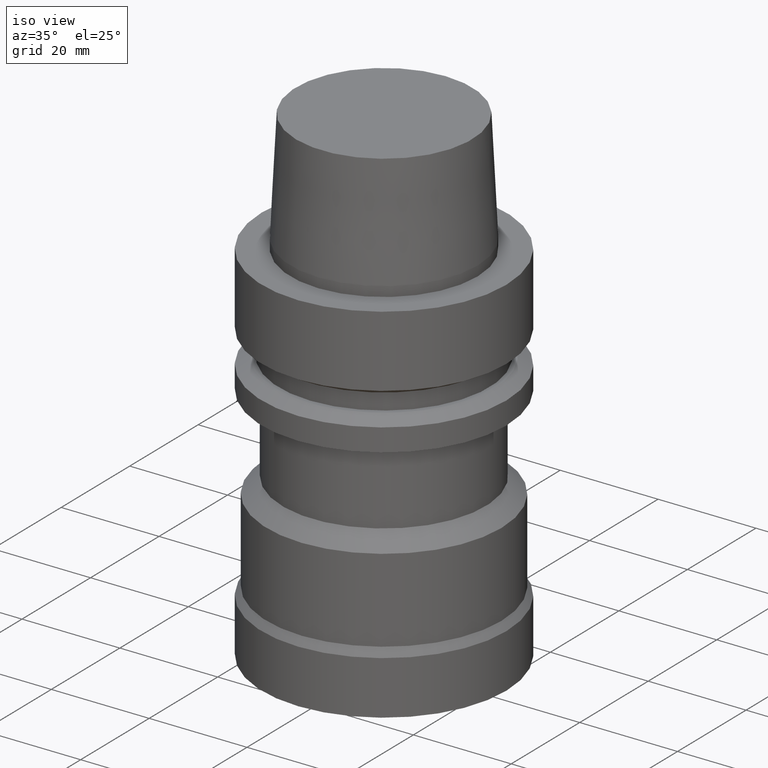
[diagram: clean part render]
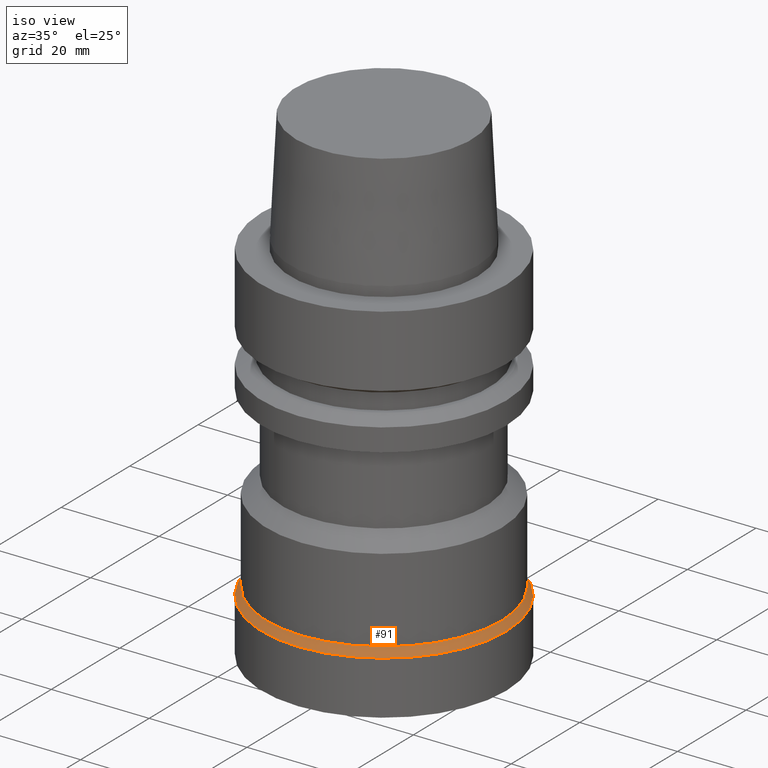
[diagram: same view with one face highlighted and labeled with its STEP entity id]
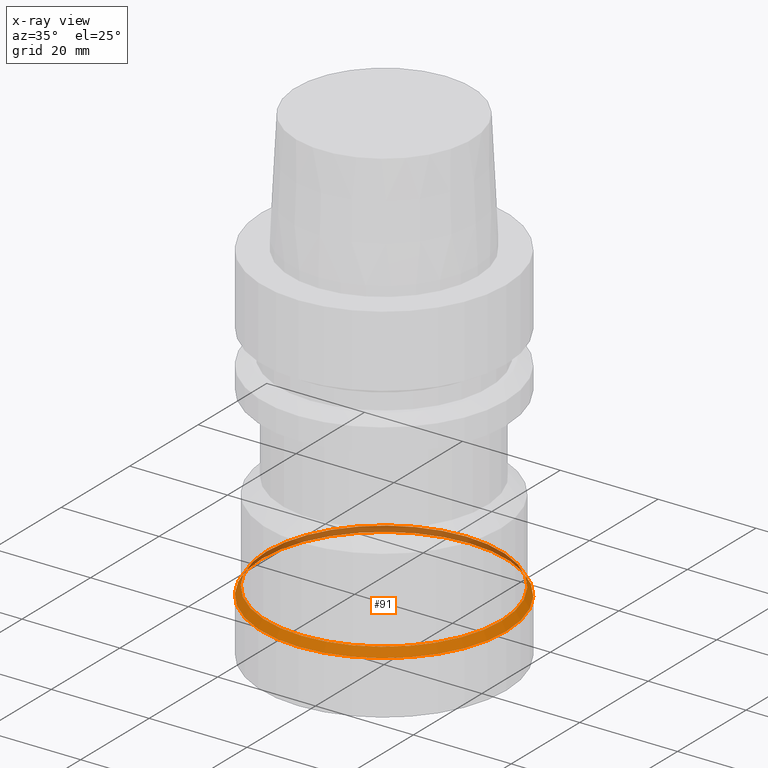
[diagram: x-ray of the same camera — body ghosted, the highlighted face saturated]
A machine part, iso view. The second image highlights one B-rep face of the part: STEP entity #91.
The next image is the same camera in x-ray: the body ghosted, the highlighted face saturated — about 29% of this face is hidden behind the body in this view.
In plain terms, the highlighted conical surface has half-angle 31.274 deg.
Its self-contained STEP definition (entity closure, byte-faithful):
#91=ADVANCED_FACE('',(#140,#141),#142,.T.);
#140=FACE_BOUND('',#192,.T.);
#141=FACE_BOUND('',#193,.T.);
#142=CONICAL_SURFACE('',#194,24.5,0.54582981744348);
#192=EDGE_LOOP('',(#276));
#193=EDGE_LOOP('',(#277));
#194=AXIS2_PLACEMENT_3D('',#278,#279,#280);
#276=ORIENTED_EDGE('',*,*,#302,.F.);
#277=ORIENTED_EDGE('',*,*,#301,.T.);
#278=CARTESIAN_POINT('',(3.8684629842645E-015,7.736925968529E-015,-63.176794925));
#279=DIRECTION('',(6.12323399573677E-017,1.22464679914735E-016,-1.0));
#280=DIRECTION('',(-1.23259516440783E-032,1.0,1.22464679914735E-016));
#301=EDGE_CURVE('',#333,#333,#334,.T.);
#302=EDGE_CURVE('',#335,#335,#336,.T.);
#333=VERTEX_POINT('',#367);
#334=CIRCLE('',#368,24.0);
#335=VERTEX_POINT('',#369);
#336=CIRCLE('',#370,25.0);
#367=CARTESIAN_POINT('',(3.81805621125747E-015,24.0,-62.35358985));
#368=AXIS2_PLACEMENT_3D('',#416,#417,#418);
#369=CARTESIAN_POINT('',(3.91886975727153E-015,25.0,-64.0));
#370=AXIS2_PLACEMENT_3D('',#419,#420,#421);
#416=CARTESIAN_POINT('',(3.81805621125747E-015,7.63611242251494E-015,-62.35358985));
#417=DIRECTION('',(6.12323399573677E-017,1.22464679914735E-016,-1.0));
#418=DIRECTION('',(-1.23259516440783E-032,1.0,1.22464679914735E-016));
#419=CARTESIAN_POINT('',(3.91886975727153E-015,7.83773951454306E-015,-64.0));
#420=DIRECTION('',(6.12323399573677E-017,1.22464679914735E-016,-1.0));
#421=DIRECTION('',(-1.23259516440783E-032,1.0,1.22464679914735E-016));